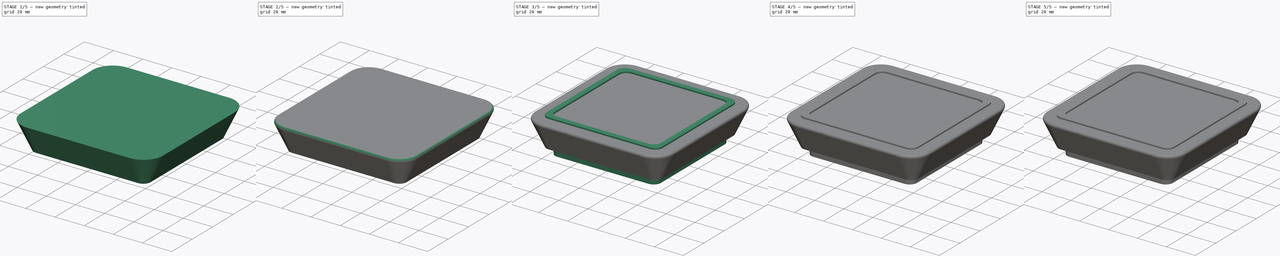
[diagram: build sequence overview — one tinted view per stage of 5, left to right]
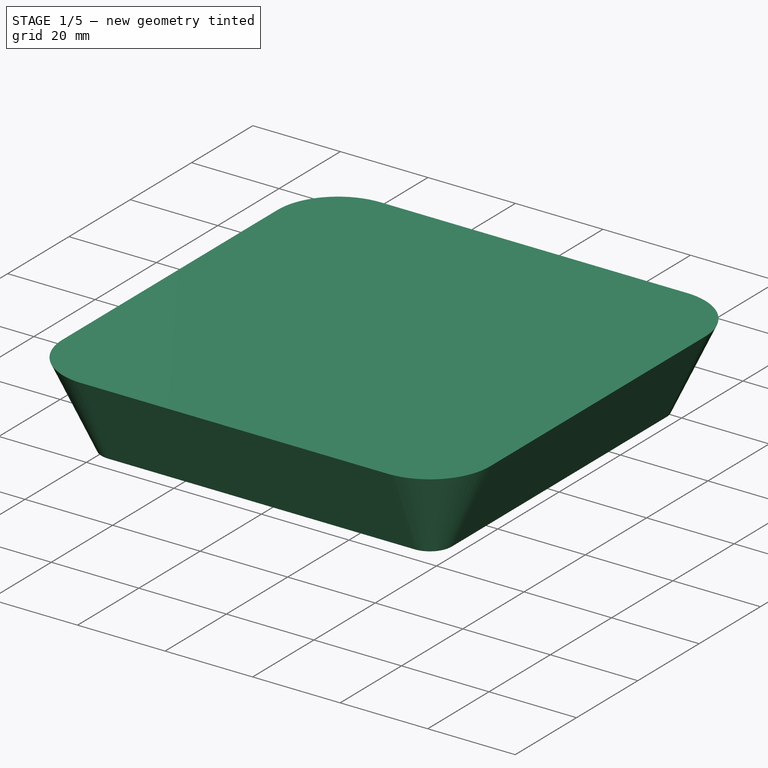
[diagram: stage 1 of 5 — iso view after this stage's code; geometry added in this stage tinted green]
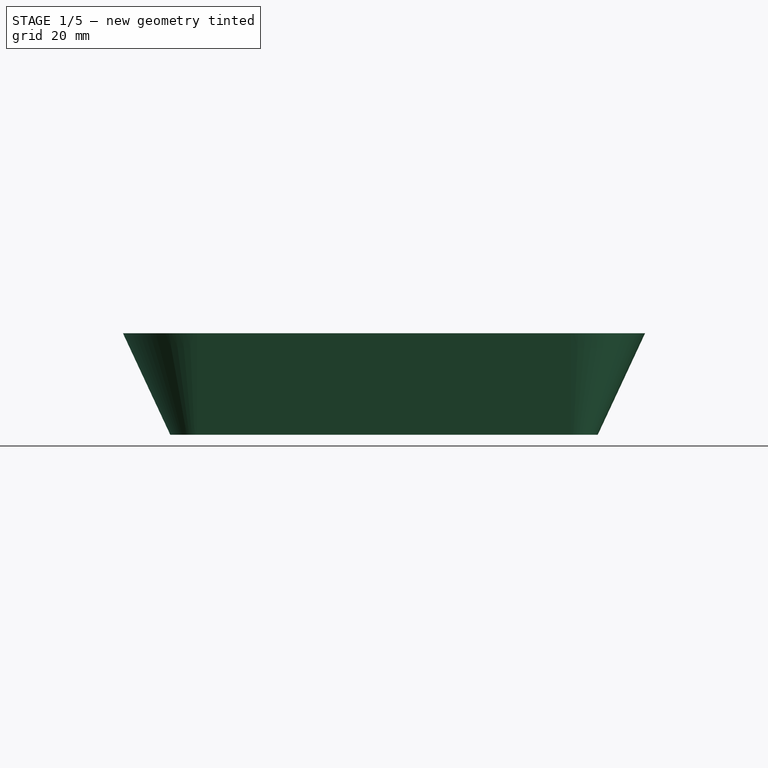
[diagram: stage 1 of 5 — front view after this stage's code; geometry added in this stage tinted green]
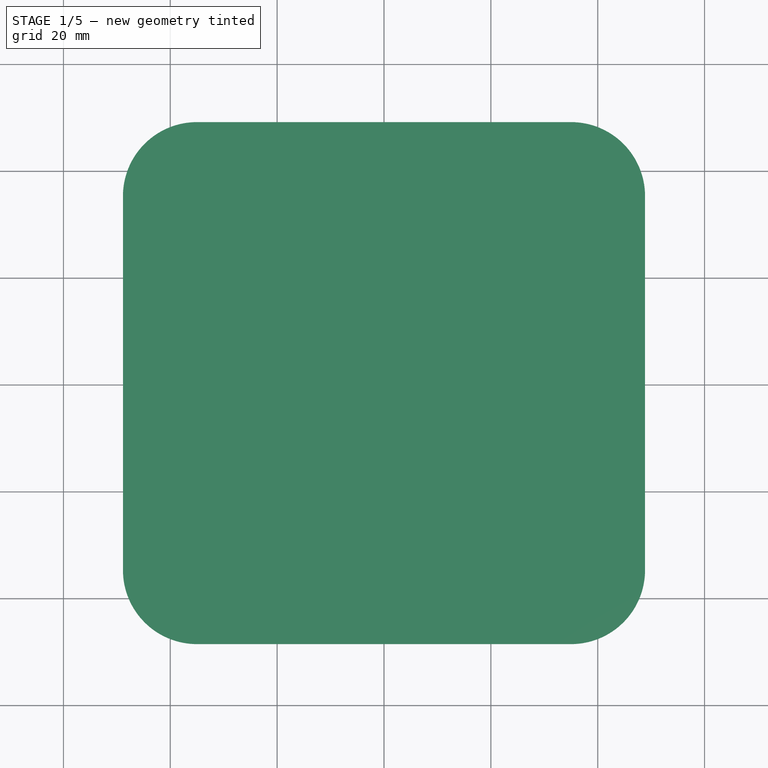
[diagram: stage 1 of 5 — top view after this stage's code; geometry added in this stage tinted green]
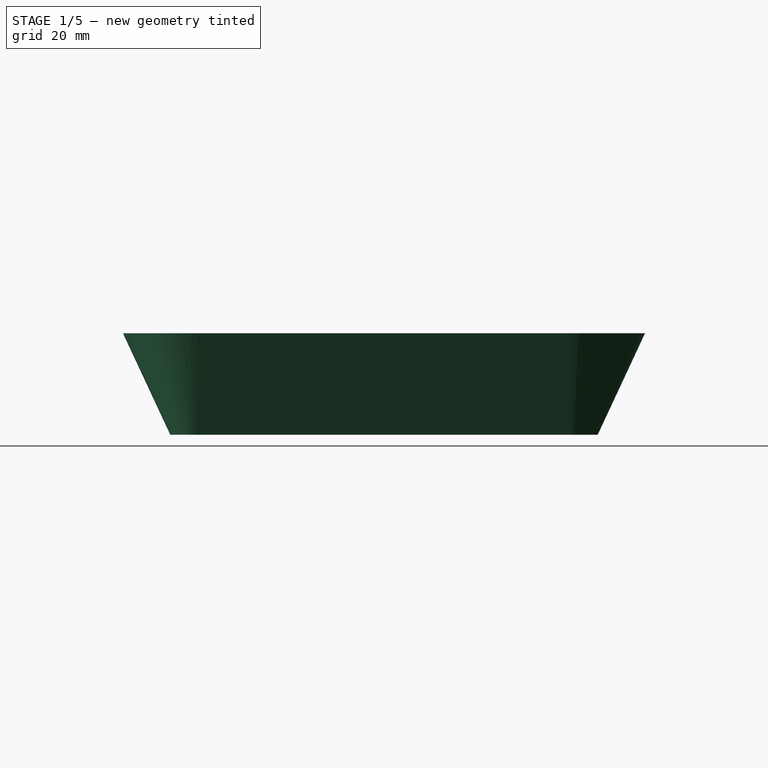
[diagram: stage 1 of 5 — right view after this stage's code; geometry added in this stage tinted green]
FCSTD DOCUMENT  (FreeCAD 0.19R21329 (Git))
Label: BluetoothButtonBox
License: All rights reserved
LicenseURL: http://en.wikipedia.org/wiki/All_rights_reserved
objects: Sketcher::SketchObject×12, Part::Extrusion×6, Part::Fillet×5, PartDesign::Pad×4, PartDesign::Pocket×4, Part::Cut×3, PartDesign::Body×2, PartDesign::ShapeBinder×2, Spreadsheet::Sheet×1
note: 46 computed .brp shape members not serialized (recipe doc carries the construction recipe); baked Part::Feature solids carry a one-line shape summary decoded from their .brp

FEATURE [PartDesign::ShapeBinder] ShapeBinder  label="ShapeBinder_Sketch_Base"
  Support = -> [Sketch]
  TraceSupport = false
FEATURE [Sketcher::SketchObject] Sketch007
  ExternalGeometry = -> [ShapeBinder]
  MapMode = 5
  Support = -> [XY_Plane001]
  sketch-geometry (8):
    g0: LineSegment StartX=-35 StartY=40 StartZ=0 EndX=35 EndY=40 EndZ=0
    g1: ArcOfCircle CenterX=-35 CenterY=35 CenterZ=0 NormalX=0 NormalY=0 NormalZ=1 AngleXU=0 Radius=5 StartAngle=1.5708 EndAngle=3.14159
    g2: ArcOfCircle CenterX=35 CenterY=35 CenterZ=0 NormalX=0 NormalY=0 NormalZ=1 AngleXU=0 Radius=5 StartAngle=0 EndAngle=1.5708
    g3: ArcOfCircle CenterX=35 CenterY=-35 CenterZ=0 NormalX=0 NormalY=0 NormalZ=1 AngleXU=0 Radius=5 StartAngle=4.71239 EndAngle=6.28319
    g4: ArcOfCircle CenterX=-35 CenterY=-35 CenterZ=0 NormalX=0 NormalY=0 NormalZ=1 AngleXU=0 Radius=5 StartAngle=3.14159 EndAngle=4.71239
    g5: LineSegment StartX=-40 StartY=35 StartZ=0 EndX=-40 EndY=-35 EndZ=0
    g6: LineSegment StartX=40 StartY=35 StartZ=0 EndX=40 EndY=-35 EndZ=0
    g7: LineSegment StartX=-35 StartY=-40 StartZ=0 EndX=35 EndY=-40 EndZ=0
  constraints (20):
    c: Coincident(g0,g-10)
    c: Coincident(g4,g-6)
    c: Coincident(g4,g-7)
    c: Equal(g4,g-6)
    c: Coincident(g3,g-9)
    c: Coincident(g3,g-8)
    c: Equal(g-8,g3)
    c: Coincident(g2,g0)
    c: Coincident(g2,g-10)
    c: Equal(g2,g-10)
    c: Coincident(g5,g1)
    c: Coincident(g5,g4)
    c: Coincident(g6,g2)
    c: Coincident(g6,g3)
    c: Coincident(g7,g4)
    c: Coincident(g7,g3)
    c: Coincident(g0,g-4)
    c: Coincident(g1,g0)
    c: Coincident(g-5,g1)
    c: Equal(g1,g-4)
FEATURE [Part::Extrusion] Extrude001
  Base = -> Sketch007
  Dir = (0,0,1)
  DirMode = 2
  FaceMakerClass = Part::FaceMakerBullseye
  LengthFwd = 19
  LengthRev = 0
  Solid = true
  Symmetric = false
  TaperAngle = 25
FEATURE [Sketcher::SketchObject] Sketch008
  ExternalGeometry = -> [ShapeBinder]
  MapMode = 5
  Support = -> [XY_Plane001]
  sketch-geometry (8):
    g0: ArcOfCircle CenterX=-31.4645 CenterY=31.4645 CenterZ=0 NormalX=0 NormalY=0 NormalZ=1 AngleXU=0 Radius=5 StartAngle=1.5708 EndAngle=3.14159
    g1: ArcOfCircle CenterX=31.4645 CenterY=31.4645 CenterZ=0 NormalX=0 NormalY=0 NormalZ=1 AngleXU=0 Radius=5 StartAngle=0 EndAngle=1.5708
    g2: ArcOfCircle CenterX=31.4645 CenterY=-31.4645 CenterZ=0 NormalX=0 NormalY=0 NormalZ=1 AngleXU=0 Radius=5 StartAngle=4.71239 EndAngle=6.28319
    g3: ArcOfCircle CenterX=-31.4645 CenterY=-31.4645 CenterZ=0 NormalX=0 NormalY=0 NormalZ=1 AngleXU=0 Radius=5 StartAngle=3.14159 EndAngle=4.71239
    g4: LineSegment StartX=-31.4645 StartY=36.4645 StartZ=0 EndX=31.4645 EndY=36.4645 EndZ=0
    g5: LineSegment StartX=36.4645 StartY=31.4645 StartZ=0 EndX=36.4645 EndY=-31.4645 EndZ=0
    g6: LineSegment StartX=-31.4645 StartY=-36.4645 StartZ=0 EndX=31.4645 EndY=-36.4645 EndZ=0
    g7: LineSegment StartX=-36.4645 StartY=-31.4645 StartZ=0 EndX=-36.4645 EndY=31.4645 EndZ=0
  constraints (20):
    c: Coincident(g0,g-3)
    c: Coincident(g-4,g0)
    c: Equal(g-11,g0)
    c: Coincident(g1,g-12)
    c: Coincident(g1,g-12)
    c: Equal(g1,g-12)
    c: Coincident(g2,g-13)
    c: Coincident(g2,g-13)
    c: Equal(g2,g-13)
    c: Coincident(g3,g-14)
    c: Coincident(g3,g-14)
    c: Equal(g-14,g3)
    c: Coincident(g4,g0)
    c: Coincident(g4,g1)
    c: Coincident(g5,g1)
    c: Coincident(g5,g2)
    c: Coincident(g6,g2)
    c: Coincident(g6,g3)
    c: Coincident(g7,g3)
    c: Coincident(g7,g0)
FEATURE [Part::Extrusion] Extrude
  Base = -> Sketch008
  Dir = (0,0,1)
  DirMode = 2
  FaceMakerClass = Part::FaceMakerBullseye
  LengthFwd = 16
  LengthRev = 0
  Solid = true
  Symmetric = false
  TaperAngle = 25
FEATURE [Part::Cut] Cut  label="Cut_BottomHalf"
  Base = -> Extrude001
  Tool = -> Extrude
FEATURE [PartDesign::ShapeBinder] ShapeBinder001  label="ShapeBinder_BottomExtrusion"
  Support = -> [Cut]
  TraceSupport = false
FEATURE [Sketcher::SketchObject] Sketch011  label="Sketch_USB_Hole"
  ExternalGeometry = -> [ShapeBinder001]
  MapMode = 5
  Placement = pos=(-29.9517,0,-13.9667) rot=(0.473306,0.473306,0.742942;1.86366rad)
  Support = -> [Cut]
  sketch-geometry (4):
    g0: LineSegment StartX=-6 StartY=33.0646 StartZ=0 EndX=6 EndY=33.0646 EndZ=0
    g1: LineSegment StartX=6 StartY=33.0646 StartZ=0 EndX=6 EndY=25.0646 EndZ=0
    g2: LineSegment StartX=6 StartY=25.0646 StartZ=0 EndX=-6 EndY=25.0646 EndZ=0
    g3: LineSegment StartX=-6 StartY=25.0646 StartZ=0 EndX=-6 EndY=33.0646 EndZ=0
  constraints (11):
    c: Coincident(g0,g1)
    c: Coincident(g1,g2)
    c: Coincident(g2,g3)
    c: Coincident(g3,g0)
    c: Equal(g0,g2)
    c: Equal(g3,g1)
    c: Perpendicular(g0,g1)
    c: Distance(g0) = 12
    c: Distance(g3) = 8
    c: PointOnObject(g0,g-3)
    c: Symmetric(g2,g1,g-2)
FEATURE [PartDesign::Pocket] Pocket003  label="Pocket_BottomHalf_WithUSB_Hole"
  Length = 5
  Length2 = 100
  Profile = -> Sketch011
  Type = 2
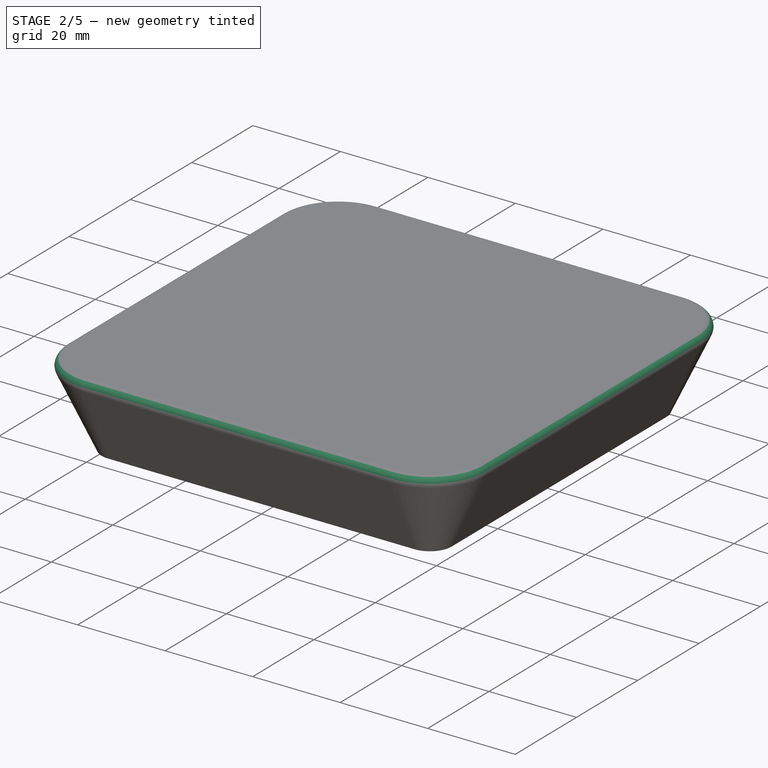
[diagram: stage 2 of 5 — iso view after this stage's code; geometry added in this stage tinted green]
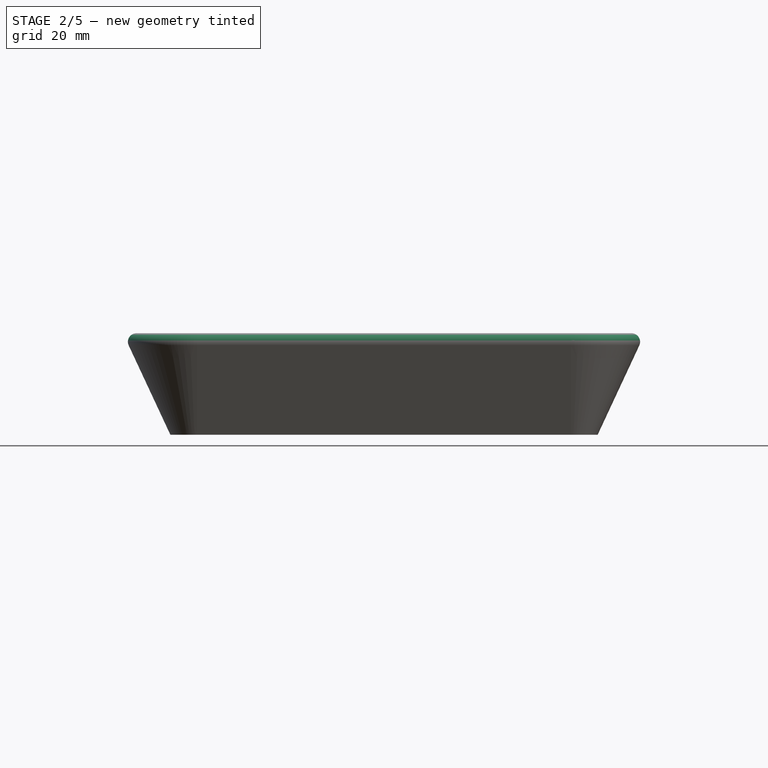
[diagram: stage 2 of 5 — front view after this stage's code; geometry added in this stage tinted green]
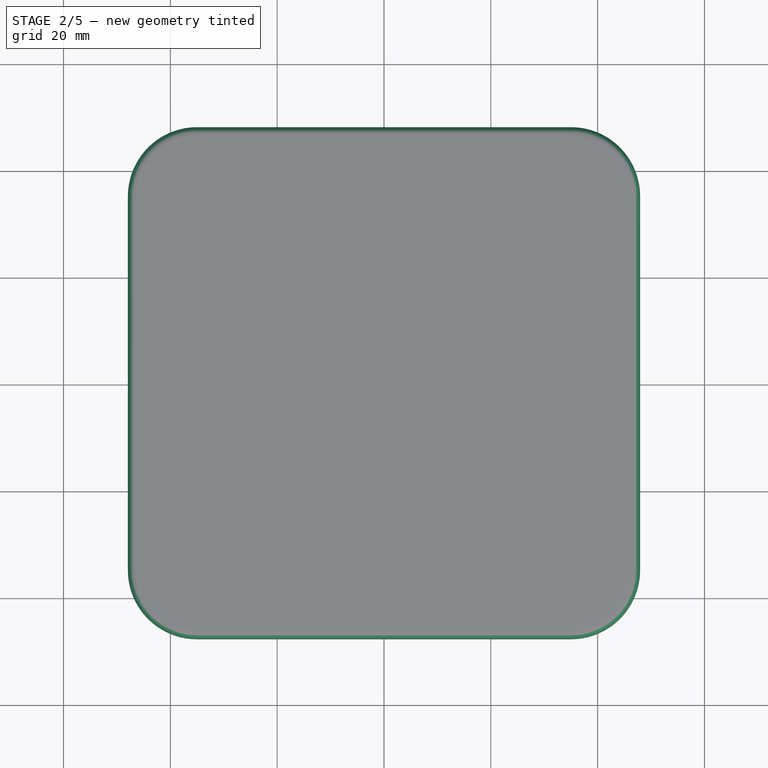
[diagram: stage 2 of 5 — top view after this stage's code; geometry added in this stage tinted green]
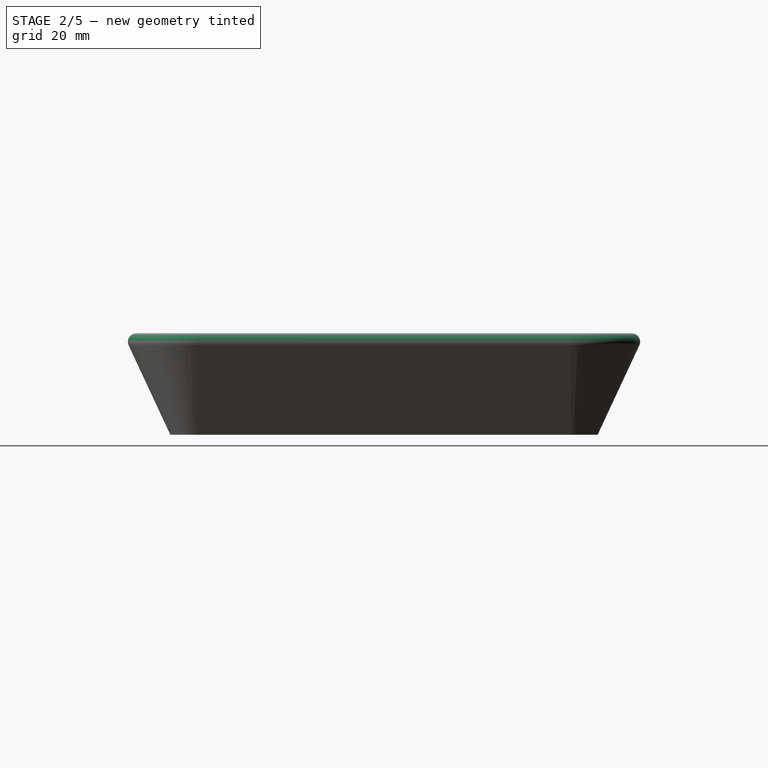
[diagram: stage 2 of 5 — right view after this stage's code; geometry added in this stage tinted green]
FEATURE [Part::Extrusion] Extrude004
  Base = -> Sketch009
  Dir = (0,0,-1)
  DirMode = 2
  FaceMakerClass = Part::FaceMakerBullseye
  LengthFwd = 5
  LengthRev = 0
  Reversed = true
  Solid = true
  Symmetric = false
  TaperAngle = 30
FEATURE [Part::Extrusion] Extrude005
  Base = -> Sketch010
  Dir = (0,0,-1)
  DirMode = 2
  FaceMakerClass = Part::FaceMakerBullseye
  LengthFwd = 10
  LengthRev = 0
  Reversed = true
  Solid = true
  Symmetric = false
  TaperAngle = 50
FEATURE [Part::Cut] Cut002  label="Cut_Insert_Support"
  Base = -> Extrude004
  Tool = -> Extrude005
FEATURE [PartDesign::Body] Body001  label="Body_Bottom"
  Group = -> [ShapeBinder,Sketch007,Sketch008,Sketch009,Sketch010,Sketch011,ShapeBinder001,Pocket003]
  Origin = -> Origin001
  Tip = -> Pocket003
FEATURE [Part::Fillet] Fillet003
  Base = -> Pocket003
  Edges = 4 edges r=2: [Edge5,Edge6,Edge7,Edge8]
FEATURE [Part::Fillet] Fillet004
  Base = -> Fillet003
  Edges = 8 edges r=1.6: [Edge8,Edge33,Edge34,Edge36,Edge37,Edge38,Edge39,Edge40]
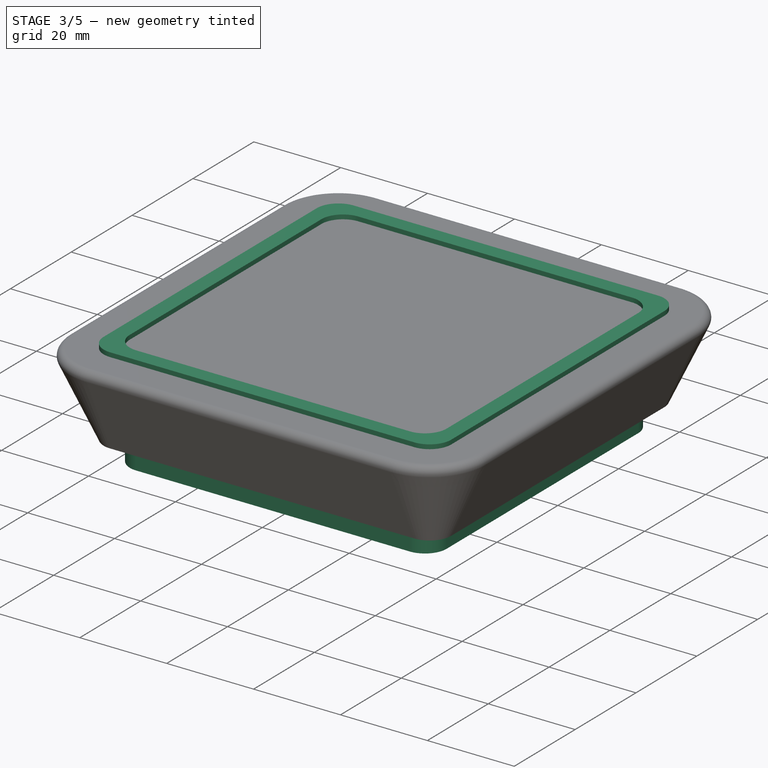
[diagram: stage 3 of 5 — iso view after this stage's code; geometry added in this stage tinted green]
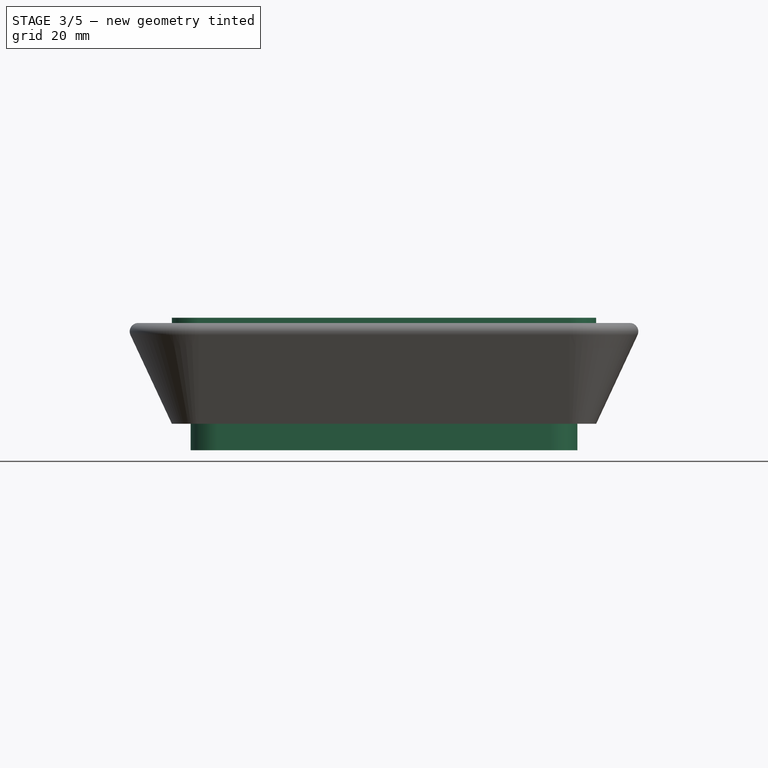
[diagram: stage 3 of 5 — front view after this stage's code; geometry added in this stage tinted green]
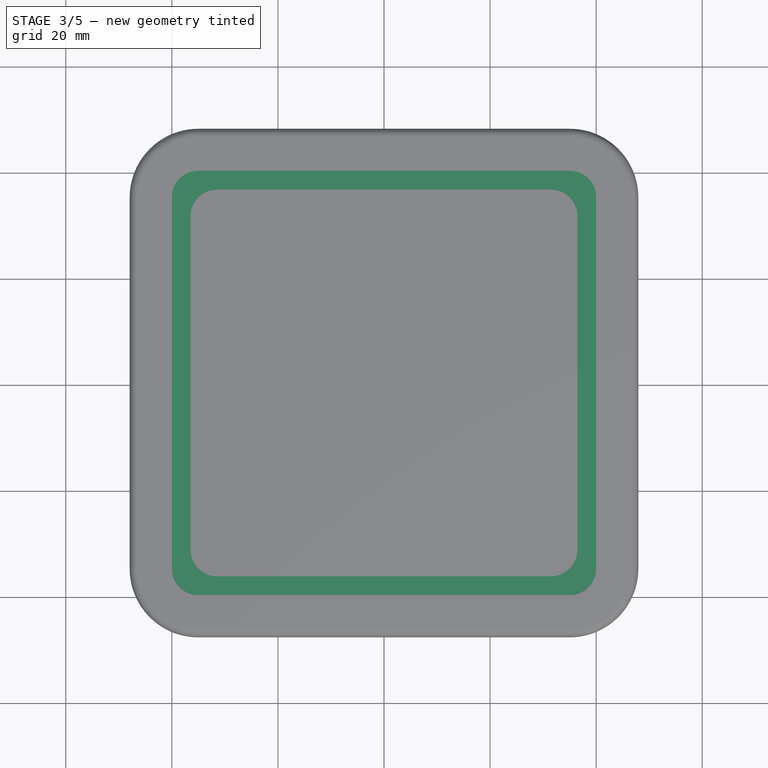
[diagram: stage 3 of 5 — top view after this stage's code; geometry added in this stage tinted green]
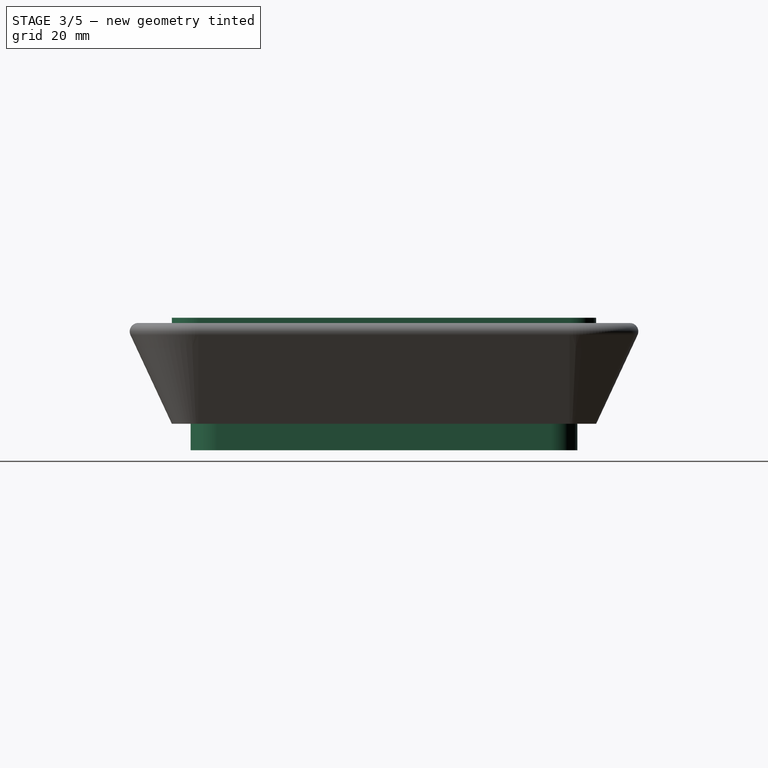
[diagram: stage 3 of 5 — right view after this stage's code; geometry added in this stage tinted green]
FEATURE [Sketcher::SketchObject] Sketch  label="Sketch_Base"
  MapMode = 5
  Support = -> [XY_Plane]
  expr: Constraints[0] = <<vars>>.corner_radius
  expr: Constraints[4] = <<vars>>.main_length
  expr: Constraints[32] = <<vars>>.corner_radius
  sketch-geometry (16):
    g0: LineSegment StartX=-35 StartY=40 StartZ=0 EndX=35 EndY=40 EndZ=0
    g1: LineSegment StartX=-40 StartY=-35 StartZ=0 EndX=-40 EndY=35 EndZ=0
    g2: ArcOfCircle CenterX=-35 CenterY=35 CenterZ=0 NormalX=0 NormalY=0 NormalZ=1 AngleXU=0 Radius=5 StartAngle=1.5708 EndAngle=3.14159
    g3: ArcOfCircle CenterX=35 CenterY=35 CenterZ=0 NormalX=0 NormalY=0 NormalZ=1 AngleXU=0 Radius=5 StartAngle=0 EndAngle=1.5708
    g4: ArcOfCircle CenterX=35 CenterY=-35 CenterZ=0 NormalX=0 NormalY=0 NormalZ=1 AngleXU=0 Radius=5 StartAngle=4.71239 EndAngle=6.28319
    g5: ArcOfCircle CenterX=-35 CenterY=-35 CenterZ=0 NormalX=0 NormalY=0 NormalZ=1 AngleXU=0 Radius=5 StartAngle=3.14159 EndAngle=4.71239
    g6: LineSegment StartX=40 StartY=35 StartZ=0 EndX=40 EndY=-35 EndZ=0
    g7: LineSegment StartX=35 StartY=-40 StartZ=0 EndX=-35 EndY=-40 EndZ=0
    g8: LineSegment StartX=-31.4645 StartY=36.4645 StartZ=0 EndX=31.4645 EndY=36.4645 EndZ=0
    g9: LineSegment StartX=36.4645 StartY=31.4645 StartZ=0 EndX=36.4645 EndY=-31.4645 EndZ=0
    g10: LineSegment StartX=31.4645 StartY=-36.4645 StartZ=0 EndX=-31.4645 EndY=-36.4645 EndZ=0
    g11: LineSegment StartX=-36.4645 StartY=-31.4645 StartZ=0 EndX=-36.4645 EndY=31.4645 EndZ=0
    g12: ArcOfCircle CenterX=31.4645 CenterY=31.4645 CenterZ=0 NormalX=0 NormalY=0 NormalZ=1 AngleXU=0 Radius=5 StartAngle=0 EndAngle=1.5708
    g13: ArcOfCircle CenterX=-31.4645 CenterY=31.4645 CenterZ=0 NormalX=0 NormalY=0 NormalZ=1 AngleXU=0 Radius=5 StartAngle=1.5708 EndAngle=3.14159
    g14: ArcOfCircle CenterX=-31.4645 CenterY=-31.4645 CenterZ=0 NormalX=0 NormalY=0 NormalZ=1 AngleXU=0 Radius=5 StartAngle=3.14159 EndAngle=4.71239
    g15: ArcOfCircle CenterX=31.4645 CenterY=-31.4645 CenterZ=0 NormalX=0 NormalY=0 NormalZ=1 AngleXU=0 Radius=5 StartAngle=4.71239 EndAngle=6.28319
  constraints (47):
    c: Radius(g2) = 5
    c: Equal(g0,g1)
    c: Equal(g2,g4) = 5
    c: Equal(g2,g5) = 5
    c: Distance(g2,g3) = 70
    c: Parallel(g7,g0)
    c: Parallel(g1,g6)
    c: Equal(g2,g3)
    c: Vertical(g1)
    c: Horizontal(g0)
    c: Symmetric(g3,g5,g-1)
    c: Coincident(g2,g0)
    c: Coincident(g2,g1)
    c: Coincident(g3,g6)
    c: Coincident(g3,g0)
    c: Coincident(g4,g7)
    c: Coincident(g4,g6)
    c: Coincident(g5,g1)
    c: Coincident(g5,g7)
    c: Equal(g0,g6)
    c: Equal(g0,g7)
    c: Equal(g0,g1)
    c: DistanceX(g2,g0) = 0
    c: DistanceY(g2,g1) = 0
    c: DistanceX(g0,g3) = 0
    c: DistanceY(g3,g3) = 0
    c: DistanceY(g5,g1) = 0
    c: DistanceX(g5,g5) = 0
    c: Tangent(g8,g13) = 1.5708
    c: Tangent(g11,g13) = 1.5708
    c: Tangent(g11,g14) = 1.5708
    c: Parallel(g9,g6)
    c: Radius(g13) = 5
    c: Equal(g13,g12)
    c: Equal(g13,g14)
    c: Equal(g13,g15)
    c: Parallel(g8,g0)
    c: Tangent(g12,g8) = 1.5708
    c: Tangent(g9,g12) = 1.5708
    c: Tangent(g9,g15) = 1.5708
    c: Tangent(g10,g15) = 1.5708
    c: Tangent(g10,g14) = 1.5708
    c: Parallel(g8,g10)
    c: Parallel(g11,g9)
    c: Equal(g8,g9)
    c: Symmetric(g12,g14,g-1)
    c: PointOnObject(g4,g15)
FEATURE [Spreadsheet::Sheet] Spreadsheet  label="vars"
  cells = A1=corners radius; B1(corner_radius)=5; A2=main length; B2(main_length)=70
FEATURE [PartDesign::Pad] Pad
  Length = 20
  Length2 = 100
  Profile = -> Sketch
  Type = 0
FEATURE [Sketcher::SketchObject] Sketch009
  ExternalGeometry = -> [Sketch008]
  MapMode = 5
  Placement = pos=(0,0,0) rot=(1,0,0;3.14159rad)
  Support = -> [Cut]
  sketch-geometry (8):
    g0: ArcOfCircle CenterX=-31.4645 CenterY=31.4645 CenterZ=0 NormalX=0 NormalY=0 NormalZ=1 AngleXU=0 Radius=5 StartAngle=1.5708 EndAngle=3.14159
    g1: ArcOfCircle CenterX=31.4645 CenterY=31.4645 CenterZ=0 NormalX=0 NormalY=0 NormalZ=1 AngleXU=0 Radius=5 StartAngle=0 EndAngle=1.5708
    g2: ArcOfCircle CenterX=31.4645 CenterY=-31.4645 CenterZ=0 NormalX=0 NormalY=0 NormalZ=1 AngleXU=0 Radius=5 StartAngle=4.71239 EndAngle=6.28319
    g3: ArcOfCircle CenterX=-31.4645 CenterY=-31.4645 CenterZ=0 NormalX=0 NormalY=0 NormalZ=1 AngleXU=0 Radius=5 StartAngle=3.14159 EndAngle=4.71239
    g4: LineSegment StartX=-31.4645 StartY=36.4645 StartZ=0 EndX=31.4645 EndY=36.4645 EndZ=0
    g5: LineSegment StartX=36.4645 StartY=31.4645 StartZ=0 EndX=36.4645 EndY=-31.4645 EndZ=0
    g6: LineSegment StartX=31.4645 StartY=-36.4645 StartZ=0 EndX=-31.4645 EndY=-36.4645 EndZ=0
    g7: LineSegment StartX=-36.4645 StartY=-31.4645 StartZ=0 EndX=-36.4645 EndY=31.4645 EndZ=0
  constraints (20):
    c: Coincident(g0,g-4)
    c: Coincident(g0,g-5)
    c: Equal(g0,g-4)
    c: Coincident(g1,g-10)
    c: Coincident(g1,g-10)
    c: Equal(g1,g-10)
    c: Coincident(g2,g-9)
    c: Coincident(g2,g-8)
    c: Equal(g2,g-8)
    c: Coincident(g3,g-7)
    c: Coincident(g3,g-6)
    c: Equal(g3,g-6)
    c: Coincident(g6,g3)
    c: Coincident(g6,g2)
    c: Coincident(g5,g2)
    c: Coincident(g5,g1)
    c: Coincident(g4,g1)
    c: Coincident(g4,g0)
    c: Coincident(g7,g0)
    c: Coincident(g7,g3)
FEATURE [Part::Extrusion] Extrude002
  Base = -> Sketch009
  Dir = (0,0,-1)
  DirMode = 2
  FaceMakerClass = Part::FaceMakerBullseye
  LengthFwd = 5
  LengthRev = 0
  Solid = true
  Symmetric = false
FEATURE [Sketcher::SketchObject] Sketch010
  ExternalGeometry = -> [Sketch009]
  MapMode = 5
  Placement = pos=(0,0,0) rot=(1,0,0;3.14159rad)
  Support = -> [Cut]
  sketch-geometry (8):
    g0: LineSegment StartX=-28.4645 StartY=33.4645 StartZ=0 EndX=28.4645 EndY=33.4645 EndZ=0
    g1: LineSegment StartX=33.4645 StartY=28.4645 StartZ=0 EndX=33.4645 EndY=-28.4645 EndZ=0
    g2: LineSegment StartX=28.4645 StartY=-33.4645 StartZ=0 EndX=-28.4645 EndY=-33.4645 EndZ=0
    g3: LineSegment StartX=-33.4645 StartY=-28.4645 StartZ=0 EndX=-33.4645 EndY=28.4645 EndZ=0
    g4: ArcOfCircle CenterX=-28.4645 CenterY=28.4645 CenterZ=0 NormalX=0 NormalY=0 NormalZ=1 AngleXU=0 Radius=5 StartAngle=1.5708 EndAngle=3.14159
    g5: ArcOfCircle CenterX=28.4645 CenterY=28.4645 CenterZ=0 NormalX=0 NormalY=0 NormalZ=1 AngleXU=0 Radius=5 StartAngle=-1.15e-14 EndAngle=1.5708
    g6: ArcOfCircle CenterX=28.4645 CenterY=-28.4645 CenterZ=0 NormalX=0 NormalY=0 NormalZ=1 AngleXU=0 Radius=5 StartAngle=4.71239 EndAngle=6.28319
    g7: ArcOfCircle CenterX=-28.4645 CenterY=-28.4645 CenterZ=0 NormalX=0 NormalY=0 NormalZ=1 AngleXU=0 Radius=5 StartAngle=3.14159 EndAngle=4.71239
  constraints (20):
    c: Tangent(g0,g4) = 1.5708
    c: Tangent(g3,g4) = 1.5708
    c: Tangent(g0,g5) = 1.5708
    c: Tangent(g1,g5) = 1.5708
    c: Tangent(g1,g6) = 1.5708
    c: Tangent(g2,g6) = 1.5708
    c: Tangent(g2,g7) = 1.5708
    c: Tangent(g3,g7) = 1.5708
    c: Parallel(g0,g-3)
    c: Parallel(g1,g-9)
    c: Parallel(g2,g-7)
    c: Parallel(g3,g-5)
    c: Equal(g0,g1)
    c: Equal(g1,g2)
    c: Equal(g3,g0)
    c: DistanceY(g0,g-4) = 3
    c: DistanceX(g-5,g3) = 3
    c: DistanceX(g1,g-10) = 3
    c: Equal(g4,g5)
    c: Equal(g7,g-6)
FEATURE [Part::Extrusion] Extrude003
  Base = -> Sketch010
  Dir = (0,0,-1)
  DirMode = 2
  FaceMakerClass = Part::FaceMakerBullseye
  LengthFwd = 5
  LengthRev = 0
  Solid = true
  Symmetric = false
FEATURE [Part::Cut] Cut001  label="Cut_InsertIntoTopHalf"
  Base = -> Extrude002
  Tool = -> Extrude003
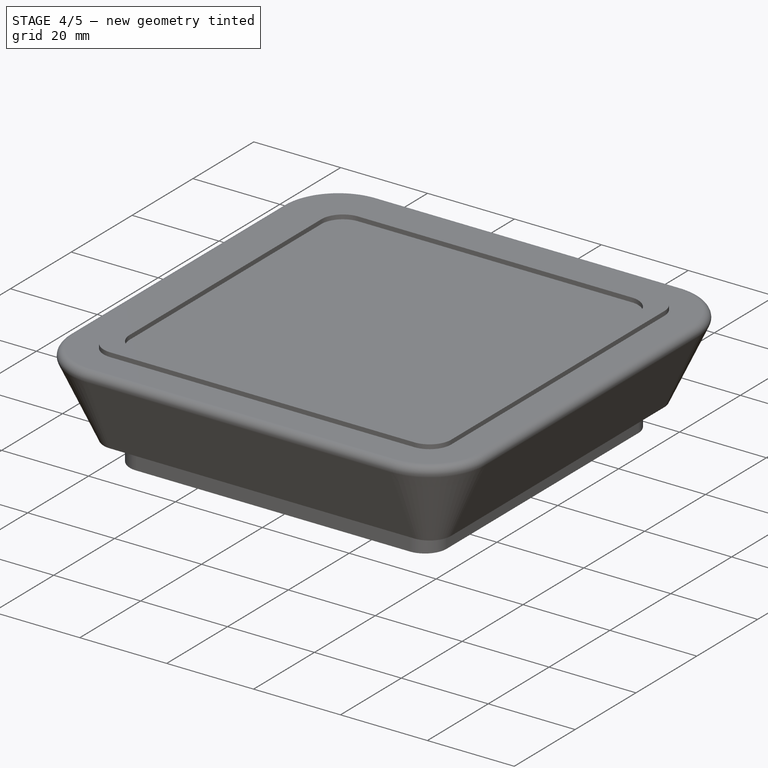
[diagram: stage 4 of 5 — iso view after this stage's code; geometry added in this stage tinted green]
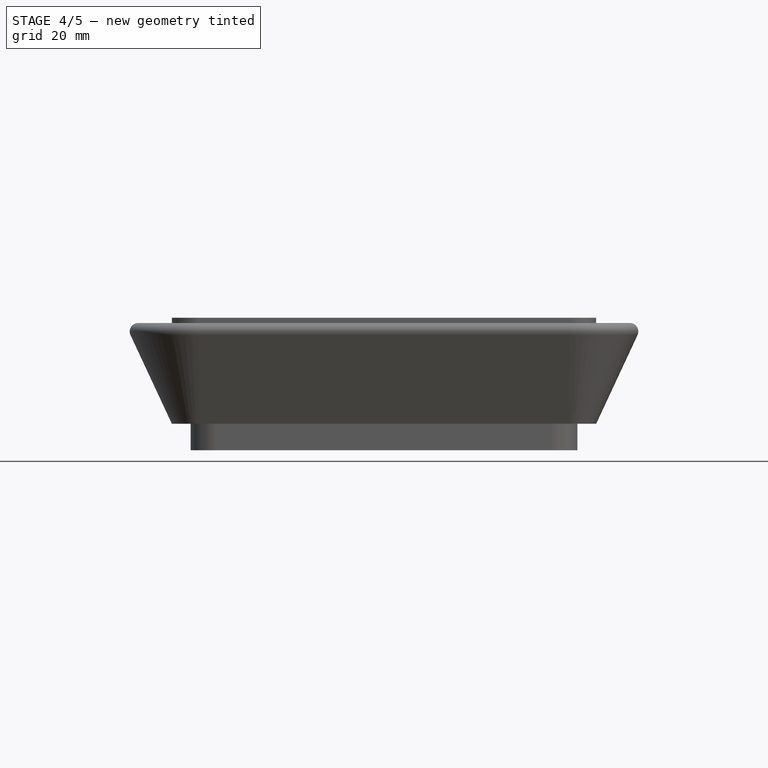
[diagram: stage 4 of 5 — front view after this stage's code; geometry added in this stage tinted green]
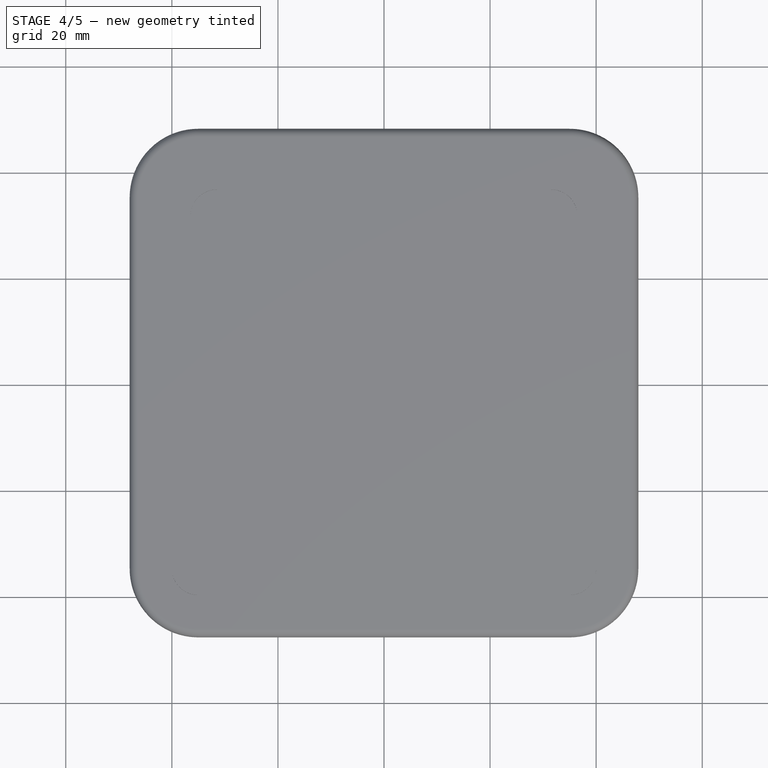
[diagram: stage 4 of 5 — top view after this stage's code; geometry added in this stage tinted green]
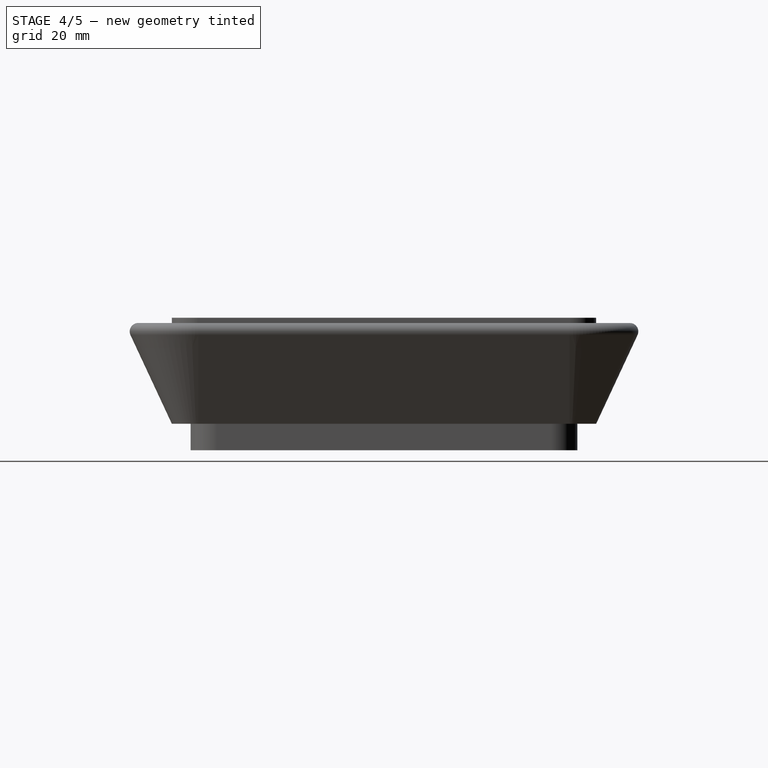
[diagram: stage 4 of 5 — right view after this stage's code; geometry added in this stage tinted green]
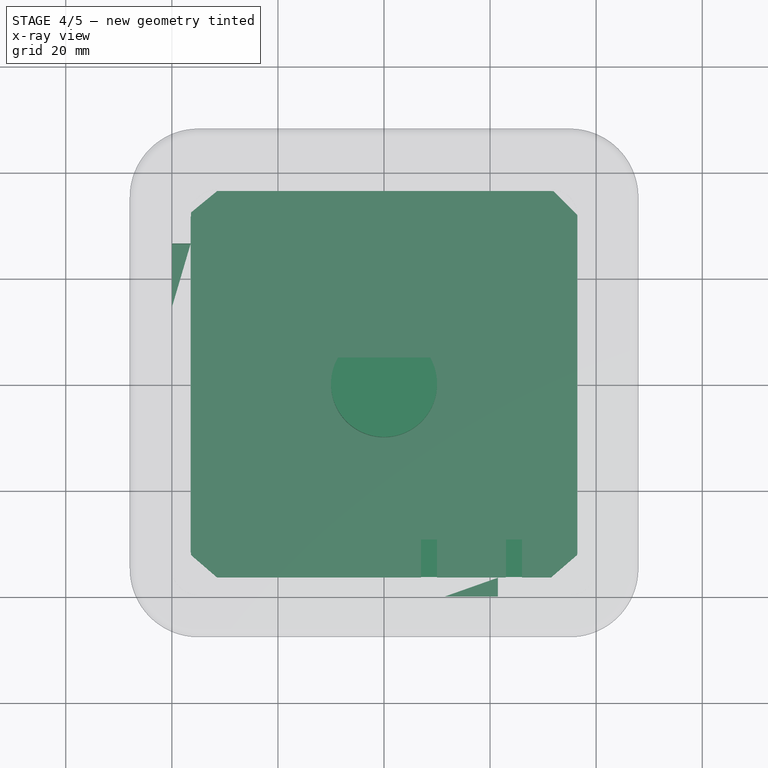
[diagram: stage 4 of 5 — x-ray composite at the top view; earlier geometry ghosted, this stage's added geometry solid]
FEATURE [Sketcher::SketchObject] Sketch001  label="Sketch_Bottom"
  ExternalGeometry = -> [Pad]
  MapMode = 5
  Placement = pos=(0,0,0) rot=(1,0,0;3.14159rad)
  Support = -> [Pad]
  expr: Constraints[10] = <<vars>>.main_length + <<vars>>.corner_radius
  sketch-geometry (4):
    g0: LineSegment StartX=-37.5 StartY=37.5 StartZ=0 EndX=37.5 EndY=37.5 EndZ=0
    g1: LineSegment StartX=37.5 StartY=37.5 StartZ=0 EndX=37.5 EndY=-37.5 EndZ=0
    g2: LineSegment StartX=37.5 StartY=-37.5 StartZ=0 EndX=-37.5 EndY=-37.5 EndZ=0
    g3: LineSegment StartX=-37.5 StartY=-37.5 StartZ=0 EndX=-37.5 EndY=37.5 EndZ=0
  constraints (11):
    c: Coincident(g0,g1)
    c: Coincident(g1,g2)
    c: Coincident(g2,g3)
    c: Coincident(g3,g0)
    c: Parallel(g0,g-3)
    c: Parallel(g1,g-4)
    c: Equal(g0,g2)
    c: Equal(g1,g3)
    c: Equal(g0,g1)
    c: Symmetric(g0,g2,g-1)
    c: Distance(g0) = 75
FEATURE [PartDesign::Pad] Pad001
  BaseFeature = -> Pad
  Length = 3
  Length2 = 100
  Profile = -> Sketch001
  Reversed = true
  Type = 0
FEATURE [Sketcher::SketchObject] Sketch002  label="Sketch_Hole_EncoderShaft_PushButton"
  ExternalGeometry = -> [Pad001]
  MapMode = 5
  Placement = pos=(0,0,0) rot=(1,0,0;3.14159rad)
  Support = -> [Pad001]
  sketch-geometry (3):
    g0: ArcOfCircle CenterX=0 CenterY=0 CenterZ=0 NormalX=0 NormalY=0 NormalZ=1 AngleXU=0 Radius=5 StartAngle=2.29353 EndAngle=7.13125
    g1: LineSegment StartX=-3.30719 StartY=3.75 StartZ=0 EndX=3.30719 EndY=3.75 EndZ=0
    g2: Circle CenterX=31.4645 CenterY=31.4645 CenterZ=0 NormalX=0 NormalY=0 NormalZ=1 AngleXU=0 Radius=3.5
  constraints (8):
    c: Coincident(g0,g-1)
    c: Diameter(g0) = 10
    c: Distance(g0,g1) = 3.75
    c: Coincident(g0,g1)
    c: Coincident(g0,g1)
    c: Horizontal(g1)
    c: Diameter(g2) = 7
    c: Coincident(g2,g-3)
FEATURE [Sketcher::SketchObject] Sketch003  label="Sketch_Button_OnOff_Hole"
  ExternalGeometry = -> [Pad001]
  MapMode = 5
  Placement = pos=(0,-36.4645,0) rot=(0,0.707107,0.707107;3.14159rad)
  sketch-geometry (4):
    g0: LineSegment StartX=-21.4645 StartY=8 StartZ=0 EndX=-11.4645 EndY=8 EndZ=0
    g1: LineSegment StartX=-11.4645 StartY=8 StartZ=0 EndX=-11.4645 EndY=3.5 EndZ=0
    g2: LineSegment StartX=-11.4645 StartY=3.5 StartZ=0 EndX=-21.4645 EndY=3.5 EndZ=0
    g3: LineSegment StartX=-21.4645 StartY=3.5 StartZ=0 EndX=-21.4645 EndY=8 EndZ=0
  constraints (12):
    c: Coincident(g0,g1)
    c: Coincident(g1,g2)
    c: Coincident(g2,g3)
    c: Coincident(g3,g0)
    c: Parallel(g0,g2)
    c: Perpendicular(g2,g1)
    c: Parallel(g3,g1)
    c: Distance(g1) = 4.5
    c: Distance(g0) = 10
    c: Distance(g2,g-3) = 0.5
    c: Parallel(g2,g-3)
    c: Distance(g0,g-4) = 10
FEATURE [PartDesign::Pocket] Pocket001
  BaseFeature = -> Pad001
  Length = 5
  Length2 = 100
  Profile = -> Sketch003
  Type = 2
FEATURE [Sketcher::SketchObject] Sketch004  label="Sketch_Button_OnOff_Sides"
  ExternalGeometry = -> [Pocket001]
  MapMode = 5
  Placement = pos=(0,-36.4645,0) rot=(0,0.707107,0.707107;3.14159rad)
  Support = -> [Pocket001]
  sketch-geometry (8):
    g0: LineSegment StartX=-25.9645 StartY=11 StartZ=0 EndX=-22.9645 EndY=11 EndZ=0
    g1: LineSegment StartX=-22.9645 StartY=11 StartZ=0 EndX=-22.9645 EndY=3 EndZ=0
    g2: LineSegment StartX=-22.9645 StartY=3 StartZ=0 EndX=-25.9645 EndY=3 EndZ=0
    g3: LineSegment StartX=-25.9645 StartY=3 StartZ=0 EndX=-25.9645 EndY=11 EndZ=0
    g4: LineSegment StartX=-9.96447 StartY=11 StartZ=0 EndX=-6.96447 EndY=11 EndZ=0
    g5: LineSegment StartX=-6.96447 StartY=11 StartZ=0 EndX=-6.96447 EndY=3 EndZ=0
    g6: LineSegment StartX=-6.96447 StartY=3 StartZ=0 EndX=-9.96447 EndY=3 EndZ=0
    g7: LineSegment StartX=-9.96447 StartY=3 StartZ=0 EndX=-9.96447 EndY=11 EndZ=0
  constraints (24):
    c: Coincident(g0,g1)
    c: Coincident(g1,g2)
    c: Coincident(g2,g3)
    c: Coincident(g3,g0)
    c: Parallel(g0,g2)
    c: Parallel(g3,g1)
    c: Perpendicular(g2,g1)
    c: Parallel(g2,g-3)
    c: PointOnObject(g1,g-3)
    c: Distance(g3) = 8
    c: DistanceX(g0,g-4) = 1.5
    c: Distance(g0) = 3
    c: Coincident(g4,g5)
    c: Coincident(g5,g6)
    c: Coincident(g6,g7)
    c: Coincident(g7,g4)
    c: Parallel(g4,g6)
    c: Parallel(g7,g5)
    c: Perpendicular(g6,g5)
    c: Equal(g3,g7) = 8
    c: Equal(g0,g4) = 5
    c: PointOnObject(g6,g-3)
    c: DistanceX(g-5,g4) = 1.5
    c: Parallel(g6,g-3)
FEATURE [PartDesign::Pad] Pad002
  BaseFeature = -> Pocket001
  Length = 7
  Length2 = 100
  Profile = -> Sketch004
  Type = 0
FEATURE [Sketcher::SketchObject] Sketch005  label="Sketch_EncoderSupport"
  ExternalGeometry = -> [Sketch002]
  MapMode = 5
  Placement = pos=(0,0,3) rot=(0,0,1;0rad)
  Support = -> [Pad002]
  sketch-geometry (2):
    g0: ArcOfCircle CenterX=0 CenterY=0 CenterZ=0 NormalX=0 NormalY=0 NormalZ=1 AngleXU=0 Radius=10 StartAngle=2.61799 EndAngle=6.80678
    g1: LineSegment StartX=-8.66025 StartY=5 StartZ=0 EndX=8.66025 EndY=5 EndZ=0
  constraints (6):
    c: Coincident(g0,g-1)
    c: Diameter(g0) = 20
    c: Tangent(g1,g-3)
    c: Horizontal(g1)
    c: Coincident(g0,g1)
    c: Coincident(g0,g1)
FEATURE [PartDesign::Pad] Pad003
  BaseFeature = -> Pad002
  Length = 5
  Length2 = 100
  Profile = -> Sketch005
  Type = 0
FEATURE [Sketcher::SketchObject] Sketch006  label="Sketch_Hole_ESP32_USB"
  ExternalGeometry = -> [Pad003]
  MapMode = 5
  Placement = pos=(-36.4645,0,0) rot=(0.57735,0.57735,0.57735;2.0944rad)
  sketch-geometry (4):
    g0: LineSegment StartX=26.4645 StartY=11.1 StartZ=0 EndX=14.4645 EndY=11.1 EndZ=0
    g1: LineSegment StartX=14.4645 StartY=11.1 StartZ=0 EndX=14.4645 EndY=3.1 EndZ=0
    g2: LineSegment StartX=14.4645 StartY=3.1 StartZ=0 EndX=26.4645 EndY=3.1 EndZ=0
    g3: LineSegment StartX=26.4645 StartY=3.1 StartZ=0 EndX=26.4645 EndY=11.1 EndZ=0
  constraints (12):
    c: Coincident(g0,g1)
    c: Coincident(g1,g2)
    c: Coincident(g2,g3)
    c: Coincident(g3,g0)
    c: Parallel(g0,g2)
    c: Parallel(g3,g1)
    c: Distance(g0) = 12
    c: Distance(g1) = 8
    c: Parallel(g2,g-3)
    c: Distance(g2,g-4) = 10
    c: Perpendicular(g3,g2)
    c: Distance(g1,g-3) = 0.1
FEATURE [PartDesign::Pocket] Pocket002
  BaseFeature = -> Pad003
  Length = 5
  Length2 = 100
  Profile = -> Sketch006
  Type = 2
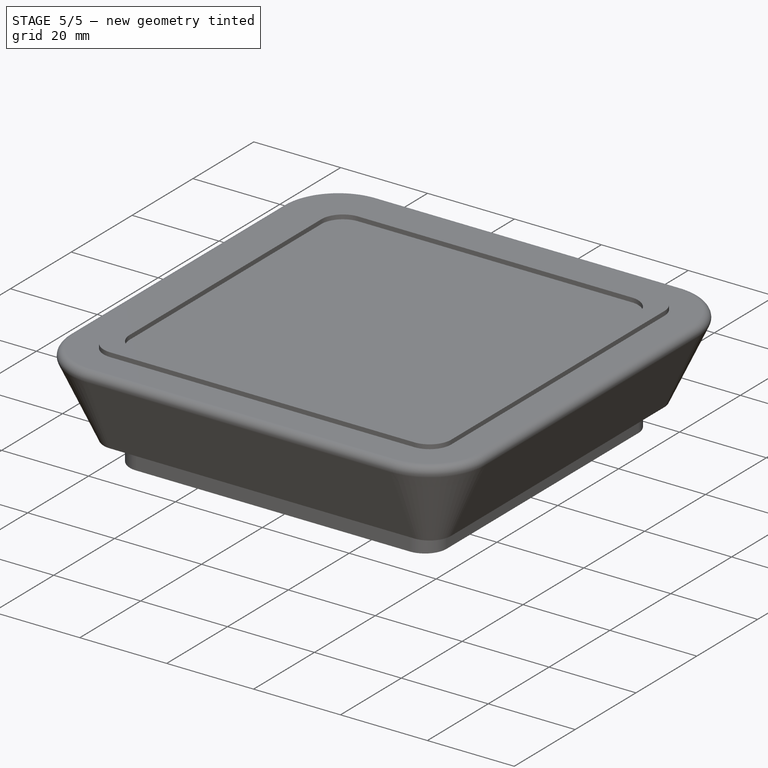
[diagram: stage 5 of 5 — iso view after this stage's code; geometry added in this stage tinted green]
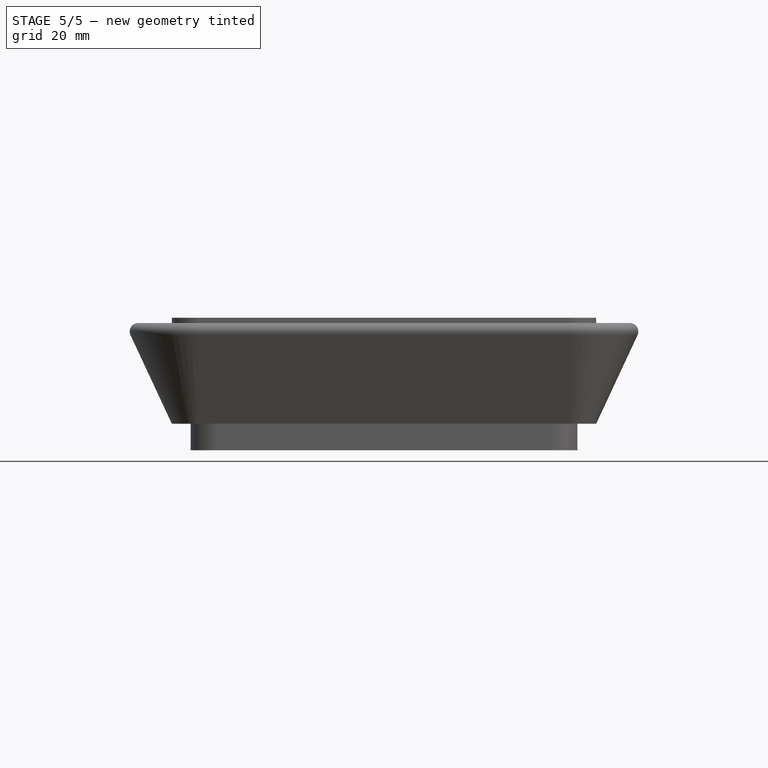
[diagram: stage 5 of 5 — front view after this stage's code; geometry added in this stage tinted green]
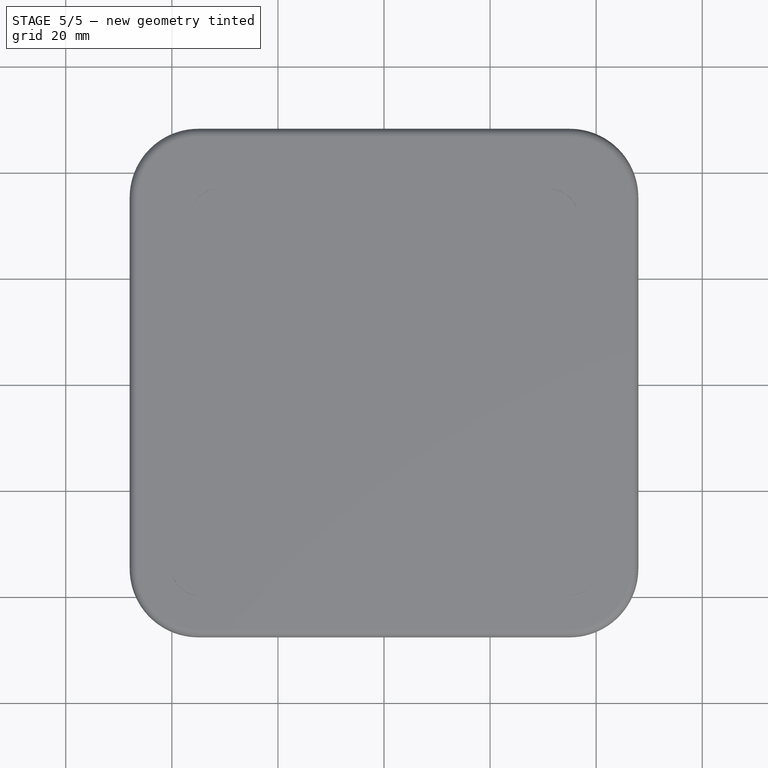
[diagram: stage 5 of 5 — top view after this stage's code; geometry added in this stage tinted green]
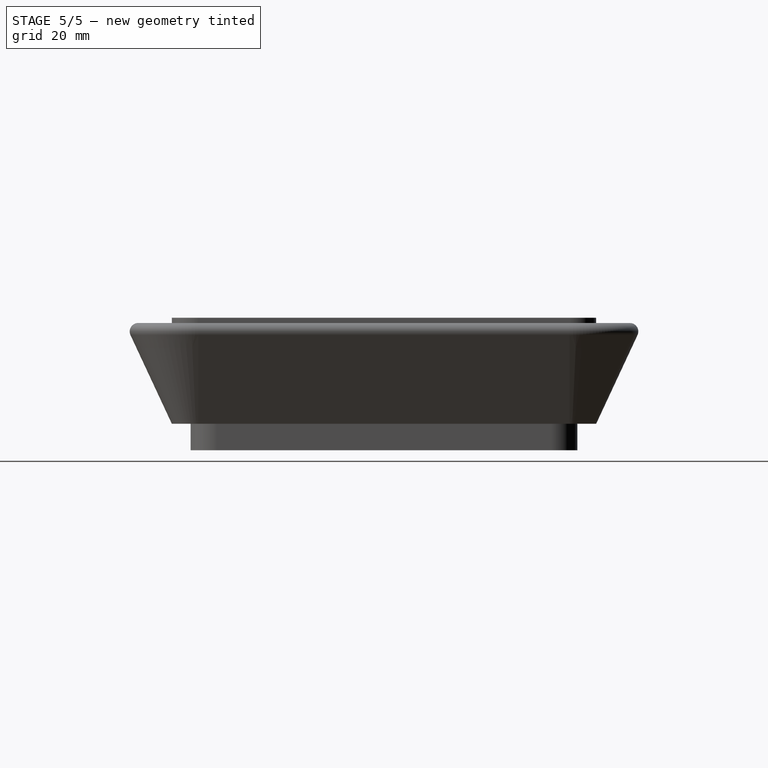
[diagram: stage 5 of 5 — right view after this stage's code; geometry added in this stage tinted green]
FEATURE [PartDesign::Pocket] Pocket
  BaseFeature = -> Pocket002
  Length = 0
  Length2 = 100
  Profile = -> Sketch002
  Type = 3
  UpToFace = -> Pocket002 [Face40]
FEATURE [PartDesign::Body] Body  label="Body_Top"
  Group = -> [Sketch,Pad,Sketch001,Pad001,Sketch002,Sketch003,Pocket001,Sketch004,Pad002,Sketch005,Pad003,Sketch006,Pocket002,Pocket]
  Origin = -> Origin
  Tip = -> Pocket
FEATURE [Part::Fillet] Fillet
  Base = -> Pocket
  Edges = 12 edges r=3: [Edge2,Edge10,Edge12,Edge13,Edge14,Edge15,Edge16,Edge17,Edge18,Edge19,Edge20,Edge21]
FEATURE [Part::Fillet] Fillet001
  Base = -> Fillet
  Edges = 3 edges r=2: [Edge43,Edge45,Edge46]
FEATURE [Part::Fillet] Fillet002
  Base = -> Fillet001
  Edges = 3 edges r=2: [Edge80,Edge81,Edge83]
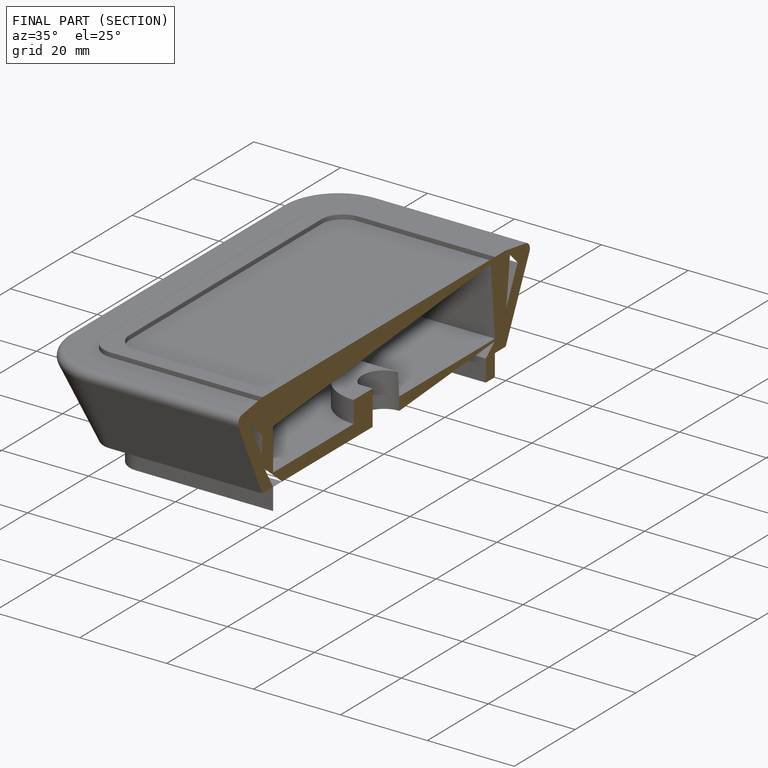
[diagram: finished part — half-section view (interior)]
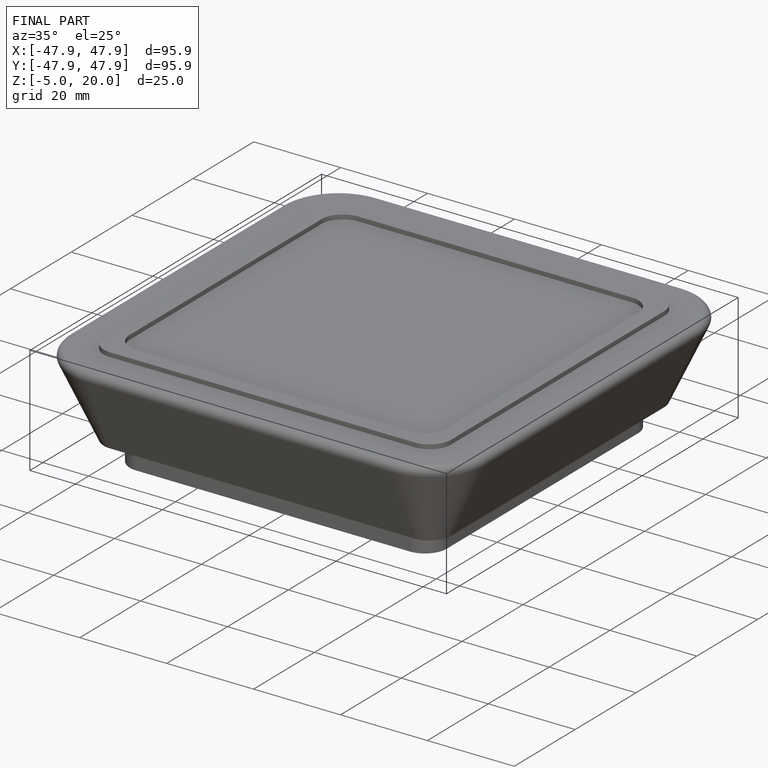
[diagram: finished part — iso view with bounding-box wireframe]
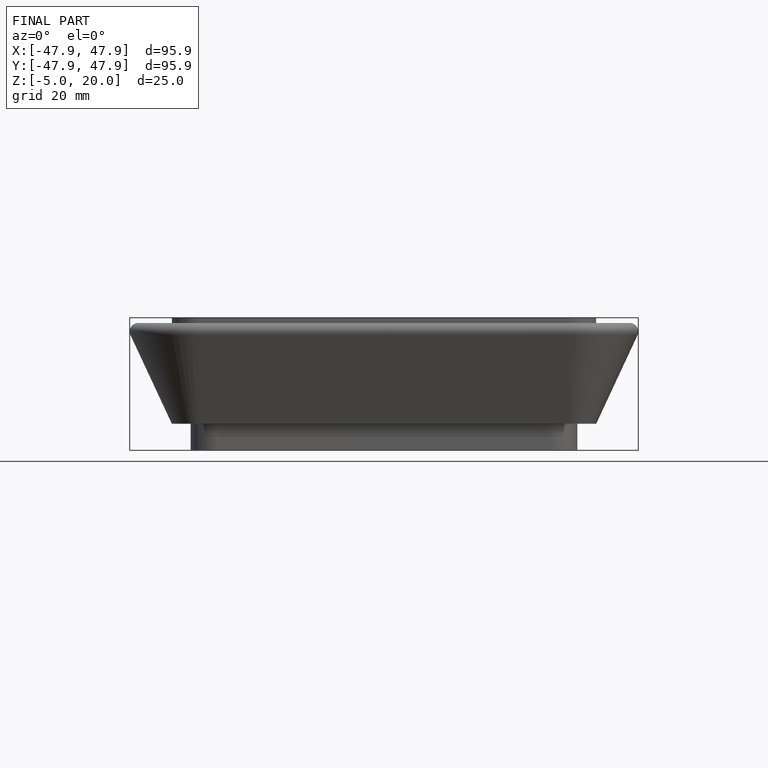
[diagram: finished part — front view with bounding-box wireframe]
